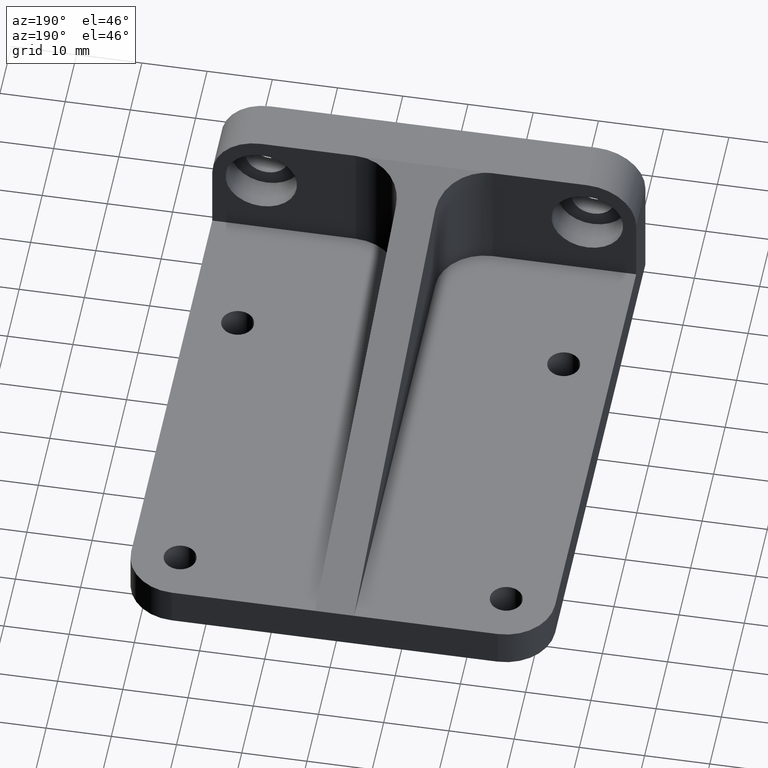
[diagram: clean part render]
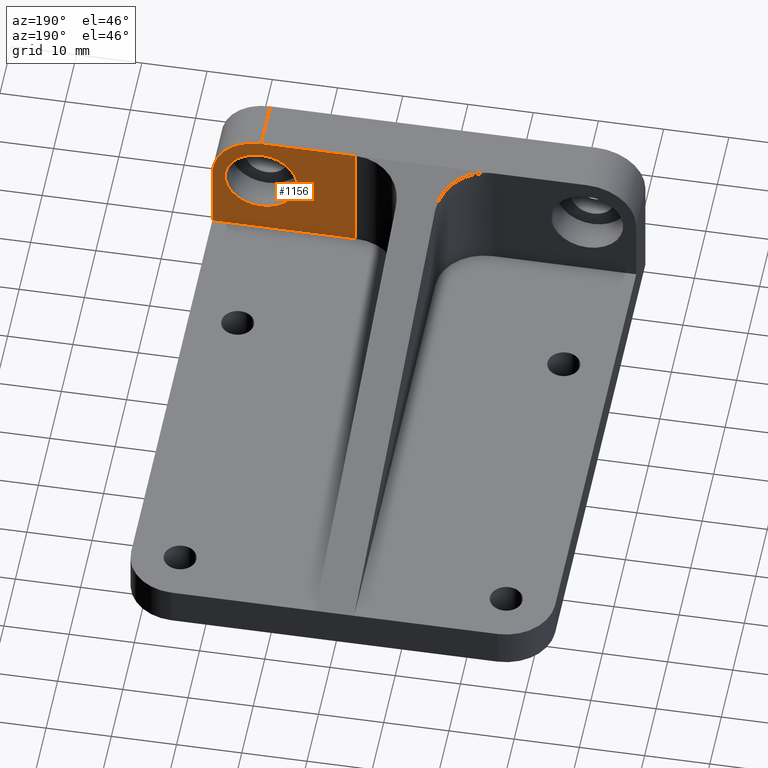
[diagram: same view with one face highlighted and labeled with its STEP entity id]
A machine part, auxiliary view. The second image highlights one B-rep face of the part: STEP entity #1156.
In plain terms, the highlighted planar face has unit normal (0, -1, -0).
Its self-contained STEP definition (entity closure, byte-faithful):
#38 = DIRECTION ( 'NONE',  ( 0.0000000000000000000, 0.0000000000000000000, 1.000000000000000000 ) ) ;
#55 = ORIENTED_EDGE ( 'NONE', *, *, #597, .F. ) ;
#104 = EDGE_LOOP ( 'NONE', ( #271, #767, #254, #1184, #1130 ) ) ;
#110 = DIRECTION ( 'NONE',  ( -1.000000000000000000, 0.0000000000000000000, 0.0000000000000000000 ) ) ;
#123 = CARTESIAN_POINT ( 'NONE',  ( 10.50000000000000888, 7.999999999999996447, 23.99999999999999289 ) ) ;
#139 = VERTEX_POINT ( 'NONE', #144 ) ;
#144 = CARTESIAN_POINT ( 'NONE',  ( 32.50000000000000000, 7.999999999999996447, 16.50000000000000000 ) ) ;
#158 = VERTEX_POINT ( 'NONE', #712 ) ;
#184 = DIRECTION ( 'NONE',  ( 0.0000000000000000000, -1.000000000000000000, -0.0000000000000000000 ) ) ;
#190 = DIRECTION ( 'NONE',  ( -0.0000000000000000000, -0.0000000000000000000, 1.000000000000000000 ) ) ;
#200 = CIRCLE ( 'NONE', #907, 5.500000000000001776 ) ;
#211 = VERTEX_POINT ( 'NONE', #1177 ) ;
#224 = EDGE_CURVE ( 'NONE', #158, #211, #810, .T. ) ;
#251 = CARTESIAN_POINT ( 'NONE',  ( 25.00000000000000355, 7.999999999999994671, 10.49999999999999112 ) ) ;
#254 = ORIENTED_EDGE ( 'NONE', *, *, #1055, .F. ) ;
#270 = VERTEX_POINT ( 'NONE', #251 ) ;
#271 = ORIENTED_EDGE ( 'NONE', *, *, #349, .F. ) ;
#294 = DIRECTION ( 'NONE',  ( -0.0000000000000000000, 1.000000000000000000, -0.0000000000000000000 ) ) ;
#317 = VERTEX_POINT ( 'NONE', #319 ) ;
#319 = CARTESIAN_POINT ( 'NONE',  ( 10.50000000000000888, 7.999999999999996447, 24.00000000000000000 ) ) ;
#349 = EDGE_CURVE ( 'NONE', #862, #317, #1217, .T. ) ;
#383 = VECTOR ( 'NONE', #110, 1000.000000000000000 ) ;
#392 = FACE_OUTER_BOUND ( 'NONE', #104, .T. ) ;
#413 = PLANE ( 'NONE',  #1061 ) ;
#443 = DIRECTION ( 'NONE',  ( 0.0000000000000000000, 0.0000000000000000000, 1.000000000000000000 ) ) ;
#449 = CIRCLE ( 'NONE', #965, 7.500000000000000000 ) ;
#461 = LINE ( 'NONE', #571, #1087 ) ;
#471 = DIRECTION ( 'NONE',  ( -0.0000000000000000000, 1.000000000000000000, -0.0000000000000000000 ) ) ;
#482 = EDGE_LOOP ( 'NONE', ( #935, #55 ) ) ;
#485 = VERTEX_POINT ( 'NONE', #494 ) ;
#494 = CARTESIAN_POINT ( 'NONE',  ( 25.00000000000000355, 7.999999999999994671, 21.49999999999999645 ) ) ;
#518 = CARTESIAN_POINT ( 'NONE',  ( 32.50000000000000000, 7.999999999999996447, 6.000000000000005329 ) ) ;
#571 = CARTESIAN_POINT ( 'NONE',  ( 32.50000000000000000, 7.999999999999996447, -83.39214591314942027 ) ) ;
#580 = DIRECTION ( 'NONE',  ( 0.0000000000000000000, 0.0000000000000000000, -1.000000000000000000 ) ) ;
#597 = EDGE_CURVE ( 'NONE', #270, #485, #835, .T. ) ;
#601 = AXIS2_PLACEMENT_3D ( 'NONE', #733, #471, #38 ) ;
#614 = EDGE_CURVE ( 'NONE', #485, #270, #200, .T. ) ;
#683 = CARTESIAN_POINT ( 'NONE',  ( 25.00000000000000000, 7.999999999999996447, 16.50000000000000000 ) ) ;
#703 = LINE ( 'NONE', #123, #780 ) ;
#712 = CARTESIAN_POINT ( 'NONE',  ( 32.50000000000000000, 7.999999999999996447, 6.000000000000000000 ) ) ;
#733 = CARTESIAN_POINT ( 'NONE',  ( 25.00000000000000355, 7.999999999999994671, 15.99999999999999289 ) ) ;
#740 = DIRECTION ( 'NONE',  ( -1.000000000000000000, -0.0000000000000000000, -0.0000000000000000000 ) ) ;
#767 = ORIENTED_EDGE ( 'NONE', *, *, #1059, .T. ) ;
#780 = VECTOR ( 'NONE', #886, 1000.000000000000000 ) ;
#781 = VECTOR ( 'NONE', #740, 1000.000000000000000 ) ;
#810 = LINE ( 'NONE', #518, #383 ) ;
#835 = CIRCLE ( 'NONE', #601, 5.500000000000001776 ) ;
#845 = DIRECTION ( 'NONE',  ( 0.0000000000000000000, 1.000000000000000000, 0.0000000000000000000 ) ) ;
#862 = VERTEX_POINT ( 'NONE', #1230 ) ;
#886 = DIRECTION ( 'NONE',  ( 0.0000000000000000000, 0.0000000000000000000, 1.000000000000000000 ) ) ;
#907 = AXIS2_PLACEMENT_3D ( 'NONE', #1162, #294, #443 ) ;
#930 = EDGE_CURVE ( 'NONE', #211, #317, #703, .T. ) ;
#935 = ORIENTED_EDGE ( 'NONE', *, *, #614, .F. ) ;
#965 = AXIS2_PLACEMENT_3D ( 'NONE', #683, #845, #580 ) ;
#1051 = DIRECTION ( 'NONE',  ( 0.0000000000000000000, 0.0000000000000000000, -1.000000000000000000 ) ) ;
#1055 = EDGE_CURVE ( 'NONE', #158, #139, #461, .T. ) ;
#1059 = EDGE_CURVE ( 'NONE', #862, #139, #449, .T. ) ;
#1061 = AXIS2_PLACEMENT_3D ( 'NONE', #1135, #184, #1051 ) ;
#1087 = VECTOR ( 'NONE', #190, 1000.000000000000000 ) ;
#1117 = CARTESIAN_POINT ( 'NONE',  ( 32.50000000000000000, 7.999999999999996447, 24.00000000000000000 ) ) ;
#1130 = ORIENTED_EDGE ( 'NONE', *, *, #930, .T. ) ;
#1135 = CARTESIAN_POINT ( 'NONE',  ( 32.50000000000000000, 7.999999999999996447, -83.39214591314942027 ) ) ;
#1153 = FACE_BOUND ( 'NONE', #482, .T. ) ;
#1156 = ADVANCED_FACE ( 'NONE', ( #1153, #392 ), #413, .F. ) ;
#1162 = CARTESIAN_POINT ( 'NONE',  ( 25.00000000000000355, 7.999999999999994671, 15.99999999999999289 ) ) ;
#1177 = CARTESIAN_POINT ( 'NONE',  ( 10.50000000000000888, 7.999999999999996447, 6.000000000000005329 ) ) ;
#1184 = ORIENTED_EDGE ( 'NONE', *, *, #224, .T. ) ;
#1217 = LINE ( 'NONE', #1117, #781 ) ;
#1230 = CARTESIAN_POINT ( 'NONE',  ( 25.00000000000000000, 7.999999999999996447, 24.00000000000000000 ) ) ;